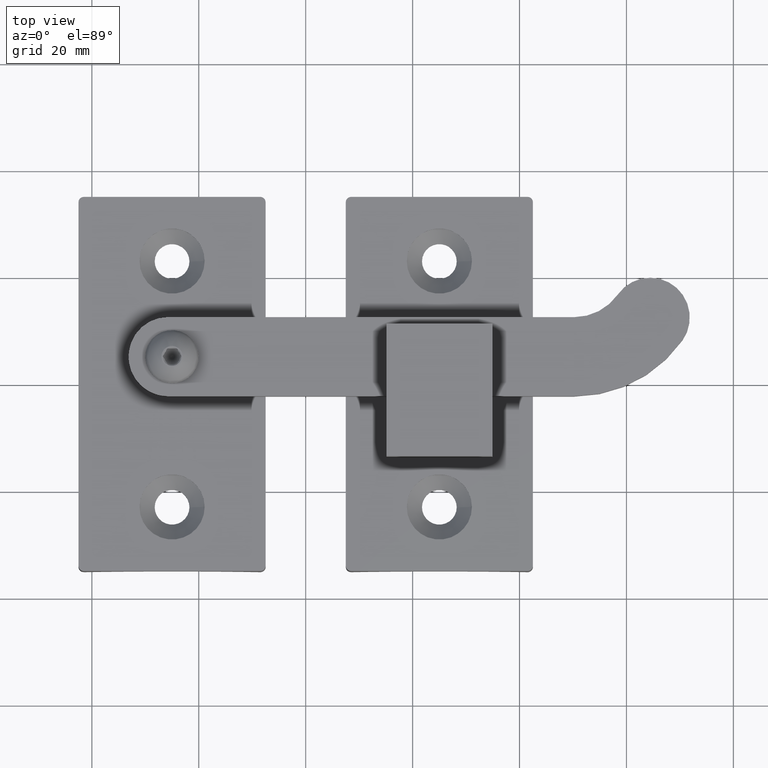
[diagram: clean part render]
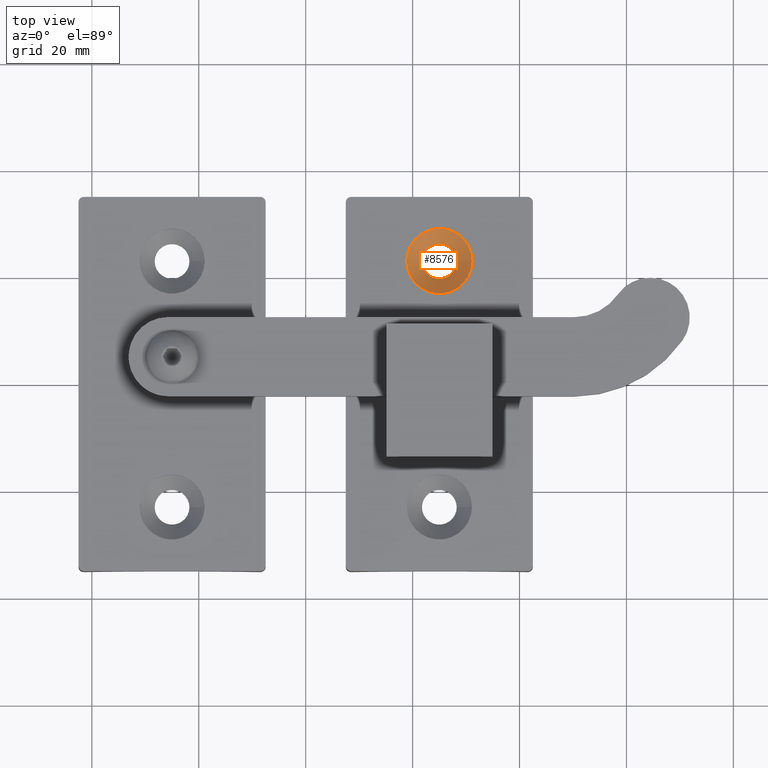
[diagram: same view with one face highlighted and labeled with its STEP entity id]
A machine part, top view. The second image highlights one B-rep face of the part: STEP entity #8576.
In plain terms, the highlighted conical surface has half-angle 45 deg.
Its self-contained STEP definition (entity closure, byte-faithful):
#1354 = EDGE_CURVE ( 'NONE', #11275, #11275, #18519, .T. ) ;
#2455 = CARTESIAN_POINT ( 'NONE',  ( 3.250000000000011546, 23.00000000000000000, -1.349999999999992317 ) ) ;
#3070 = DIRECTION ( 'NONE',  ( 1.000000000000000000, 0.000000000000000000, 0.000000000000000000 ) ) ;
#3496 = AXIS2_PLACEMENT_3D ( 'NONE', #8626, #10093, #4412 ) ;
#3853 = CARTESIAN_POINT ( 'NONE',  ( 0.000000000000000000, 23.00000000000000000, 1.500000000000002665 ) ) ;
#4219 = VERTEX_POINT ( 'NONE', #18811 ) ;
#4412 = DIRECTION ( 'NONE',  ( 1.000000000000000000, 0.000000000000000000, 0.000000000000000000 ) ) ;
#4478 = DIRECTION ( 'NONE',  ( -0.000000000000000000, -0.000000000000000000, 1.000000000000000000 ) ) ;
#4947 = ORIENTED_EDGE ( 'NONE', *, *, #1354, .F. ) ;
#5374 = FACE_OUTER_BOUND ( 'NONE', #15398, .T. ) ;
#6036 = EDGE_LOOP ( 'NONE', ( #4947 ) ) ;
#6581 = DIRECTION ( 'NONE',  ( 1.000000000000000000, 0.000000000000000000, 0.000000000000000000 ) ) ;
#6749 = CONICAL_SURFACE ( 'NONE', #3496, 6.099999999999997868, 0.7853981633974468357 ) ;
#8231 = CIRCLE ( 'NONE', #12406, 6.099999999999997868 ) ;
#8576 = ADVANCED_FACE ( 'NONE', ( #16776, #5374 ), #6749, .F. ) ;
#8626 = CARTESIAN_POINT ( 'NONE',  ( 0.000000000000000000, 23.00000000000000000, 1.500000000000002665 ) ) ;
#10093 = DIRECTION ( 'NONE',  ( -0.000000000000000000, -0.000000000000000000, 1.000000000000000000 ) ) ;
#11275 = VERTEX_POINT ( 'NONE', #2455 ) ;
#11627 = CARTESIAN_POINT ( 'NONE',  ( 0.000000000000000000, 23.00000000000000000, -1.349999999999992317 ) ) ;
#12406 = AXIS2_PLACEMENT_3D ( 'NONE', #3853, #13811, #6581 ) ;
#13811 = DIRECTION ( 'NONE',  ( -0.000000000000000000, -0.000000000000000000, 1.000000000000000000 ) ) ;
#14896 = EDGE_CURVE ( 'NONE', #4219, #4219, #8231, .T. ) ;
#15398 = EDGE_LOOP ( 'NONE', ( #15515 ) ) ;
#15515 = ORIENTED_EDGE ( 'NONE', *, *, #14896, .T. ) ;
#16722 = AXIS2_PLACEMENT_3D ( 'NONE', #11627, #4478, #3070 ) ;
#16776 = FACE_BOUND ( 'NONE', #6036, .T. ) ;
#18519 = CIRCLE ( 'NONE', #16722, 3.250000000000011546 ) ;
#18811 = CARTESIAN_POINT ( 'NONE',  ( 6.099999999999997868, 23.00000000000000000, 1.500000000000002665 ) ) ;